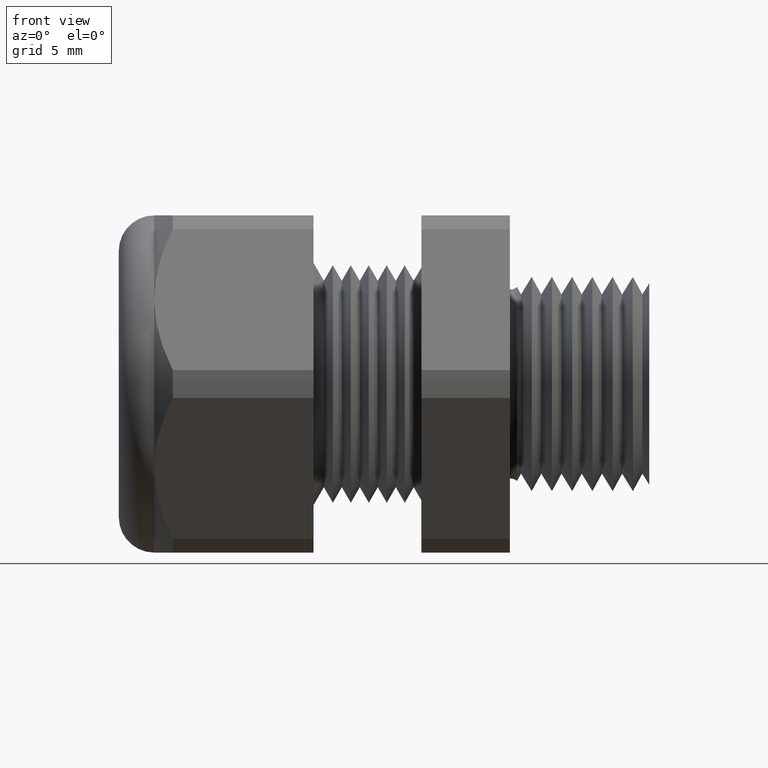
[diagram: clean part render]
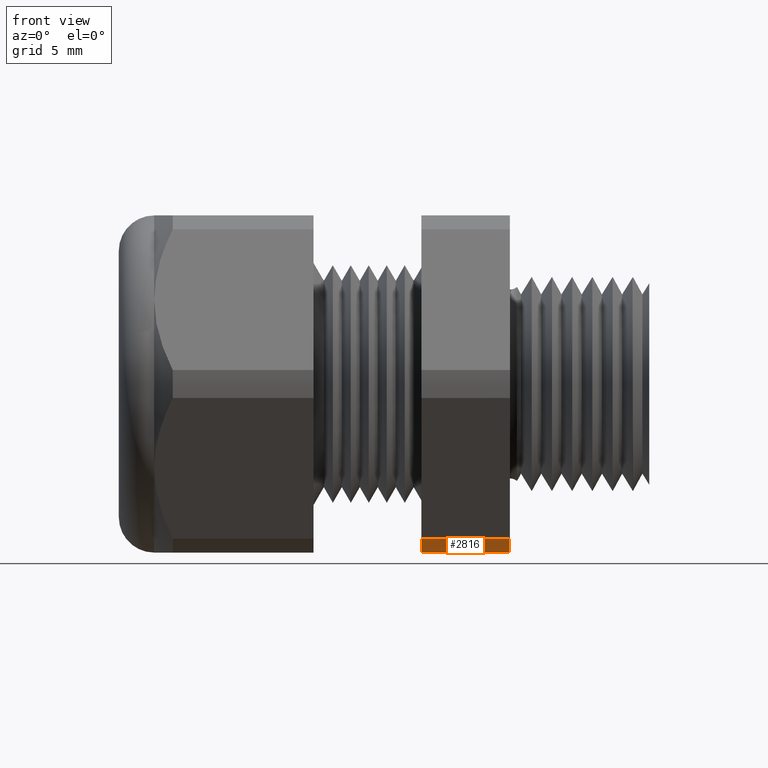
[diagram: same view with one face highlighted and labeled with its STEP entity id]
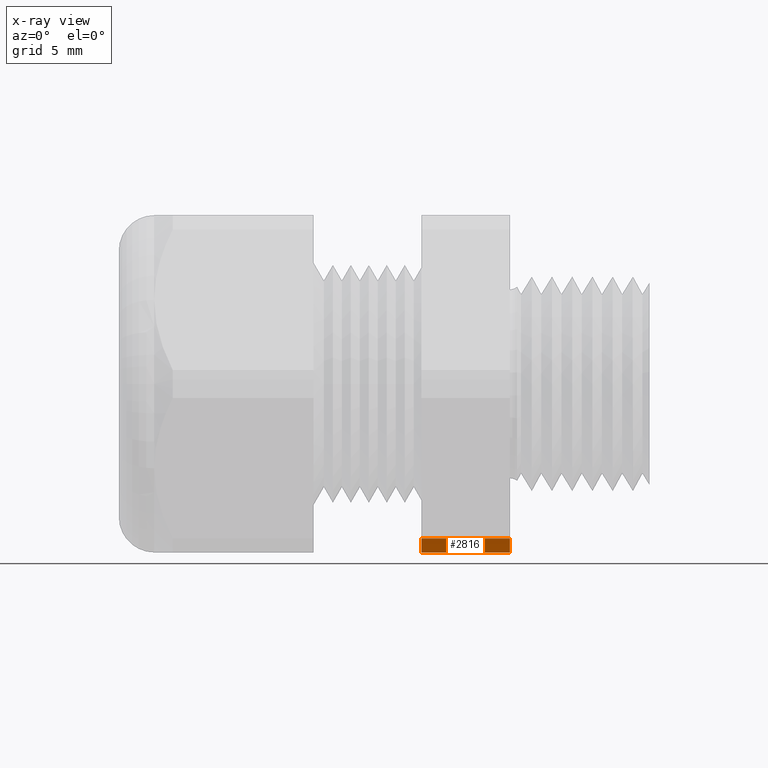
[diagram: x-ray of the same camera — body ghosted, the highlighted face saturated]
A machine part, front view. The second image highlights one B-rep face of the part: STEP entity #2816.
The next image is the same camera in x-ray: the body ghosted, the highlighted face saturated — about 0% of this face is hidden behind the body in this view.
In plain terms, the highlighted cylindrical surface (partial cylindrical patch) has radius 10.5727 mm, axis along (-1, 0, 0).
Its self-contained STEP definition (entity closure, byte-faithful):
#482 = EDGE_CURVE ( 'NONE', #494, #493, #1645, .T. ) ;
#493 = VERTEX_POINT ( 'NONE', #1623 ) ;
#494 = VERTEX_POINT ( 'NONE', #1622 ) ;
#1622 = CARTESIAN_POINT ( 'NONE',  ( -0.5068503937007874400, -0.1806628420566881700, -0.3750000000000002200 ) ) ;
#1623 = CARTESIAN_POINT ( 'NONE',  ( -0.5068503937007874400, -0.2344281053908204800, -0.3439586107409877700 ) ) ;
#1641 = DIRECTION ( 'NONE',  ( 0.0000000000000000000, 0.0000000000000000000, 1.000000000000000000 ) ) ;
#1642 = DIRECTION ( 'NONE',  ( -1.000000000000000000, 0.0000000000000000000, 0.0000000000000000000 ) ) ;
#1643 = CARTESIAN_POINT ( 'NONE',  ( -0.5068503937007874400, 0.0000000000000000000, 0.0000000000000000000 ) ) ;
#1644 = AXIS2_PLACEMENT_3D ( 'NONE', #1643, #1642, #1641 ) ;
#1645 = CIRCLE ( 'NONE', #1644, 0.4162499999999999500 ) ;
#2118 = FACE_OUTER_BOUND ( 'NONE', #3094, .T. ) ;
#2176 = DIRECTION ( 'NONE',  ( 0.0000000000000000000, 0.0000000000000000000, 1.000000000000000000 ) ) ;
#2177 = DIRECTION ( 'NONE',  ( -1.000000000000000000, 0.0000000000000000000, 0.0000000000000000000 ) ) ;
#2178 = CARTESIAN_POINT ( 'NONE',  ( 0.0000000000000000000, 0.0000000000000000000, 0.0000000000000000000 ) ) ;
#2179 = AXIS2_PLACEMENT_3D ( 'NONE', #2178, #2177, #2176 ) ;
#2180 = CYLINDRICAL_SURFACE ( 'NONE', #2179, 0.4162499999999999500 ) ;
#2264 = DIRECTION ( 'NONE',  ( -1.000000000000000000, 0.0000000000000000000, 0.0000000000000000000 ) ) ;
#2265 = VECTOR ( 'NONE', #2264, 39.37007874015748100 ) ;
#2266 = CARTESIAN_POINT ( 'NONE',  ( 0.0000000000000000000, -0.1806628420566881700, -0.3750000000000002200 ) ) ;
#2267 = LINE ( 'NONE', #2266, #2265 ) ;
#2415 = CARTESIAN_POINT ( 'NONE',  ( -0.3100000000000000000, -0.2344281053908204800, -0.3439586107409877700 ) ) ;
#2484 = DIRECTION ( 'NONE',  ( 0.0000000000000000000, 0.0000000000000000000, -1.000000000000000000 ) ) ;
#2485 = DIRECTION ( 'NONE',  ( 1.000000000000000000, 0.0000000000000000000, 0.0000000000000000000 ) ) ;
#2486 = CARTESIAN_POINT ( 'NONE',  ( -0.3100000000000000000, 0.0000000000000000000, 0.0000000000000000000 ) ) ;
#2487 = AXIS2_PLACEMENT_3D ( 'NONE', #2486, #2485, #2484 ) ;
#2488 = CIRCLE ( 'NONE', #2487, 0.4162499999999999500 ) ;
#2489 = CARTESIAN_POINT ( 'NONE',  ( -0.3100000000000000000, -0.1806628420566881700, -0.3750000000000002200 ) ) ;
#2597 = DIRECTION ( 'NONE',  ( -1.000000000000000000, 0.0000000000000000000, 0.0000000000000000000 ) ) ;
#2598 = VECTOR ( 'NONE', #2597, 39.37007874015748100 ) ;
#2599 = CARTESIAN_POINT ( 'NONE',  ( 0.0000000000000000000, -0.2344281053908204800, -0.3439586107409877700 ) ) ;
#2600 = LINE ( 'NONE', #2599, #2598 ) ;
#2816 = ADVANCED_FACE ( 'NONE', ( #2118 ), #2180, .T. ) ;
#2817 = ORIENTED_EDGE ( 'NONE', *, *, #3103, .T. ) ;
#2881 = ORIENTED_EDGE ( 'NONE', *, *, #3010, .F. ) ;
#2884 = ORIENTED_EDGE ( 'NONE', *, *, #482, .F. ) ;
#2885 = ORIENTED_EDGE ( 'NONE', *, *, #2893, .F. ) ;
#2893 = EDGE_CURVE ( 'NONE', #3008, #494, #2267, .T. ) ;
#2989 = VERTEX_POINT ( 'NONE', #2415 ) ;
#3008 = VERTEX_POINT ( 'NONE', #2489 ) ;
#3010 = EDGE_CURVE ( 'NONE', #2989, #3008, #2488, .T. ) ;
#3094 = EDGE_LOOP ( 'NONE', ( #2817, #2884, #2885, #2881 ) ) ;
#3103 = EDGE_CURVE ( 'NONE', #2989, #493, #2600, .T. ) ;